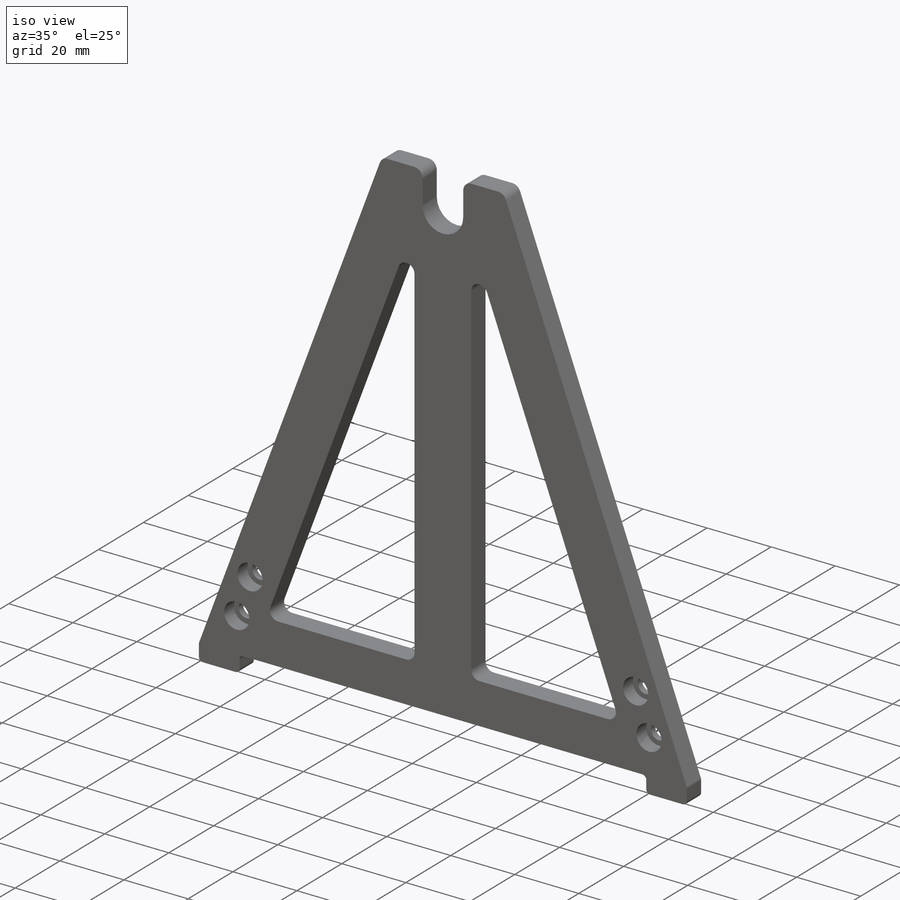
[diagram: iso view]
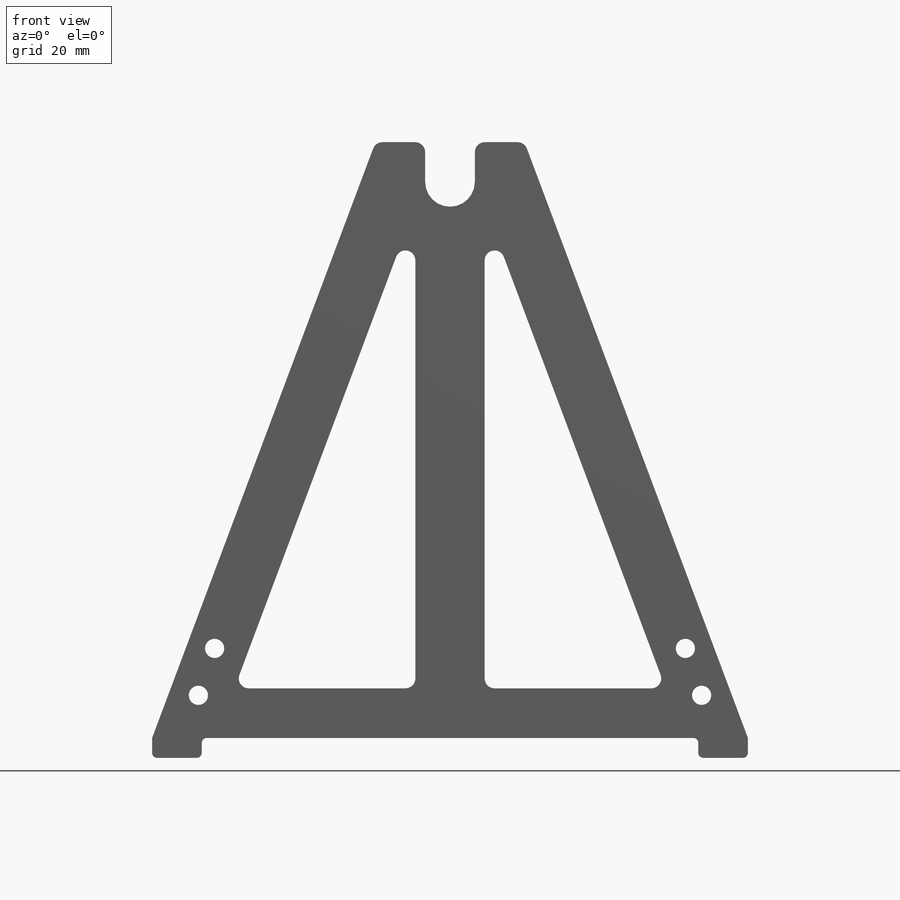
[diagram: front view]
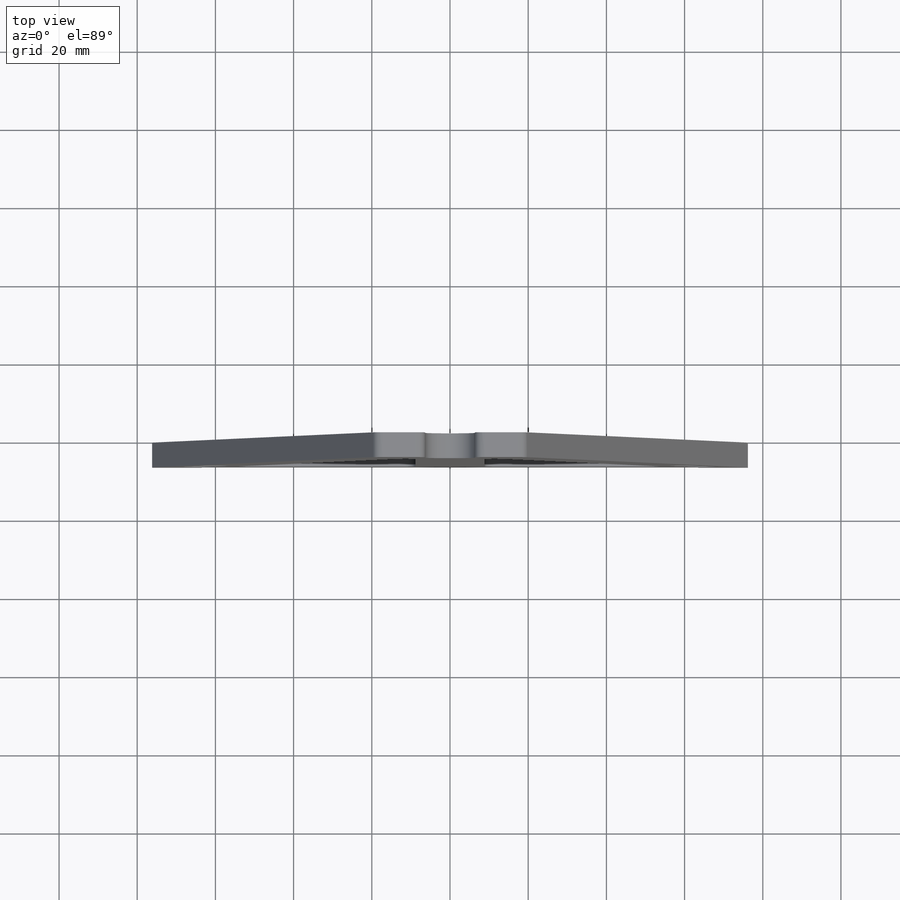
[diagram: top view]
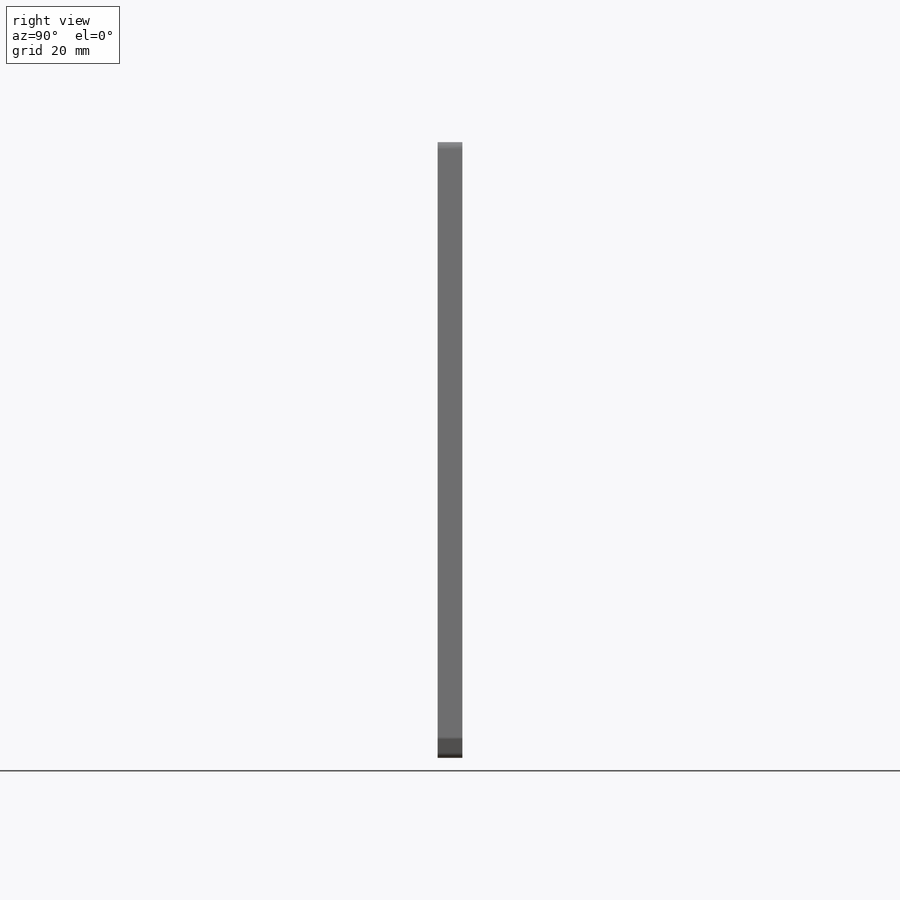
[diagram: right view]
SOLIDWORKS PART (.sldprt)
format: sldprt  version: not decoded by parser v0  size: 571,904 bytes
history: native  units: mm
features: sketch x5, cut_extrude x2, material x1, extrude x1, fillet x1, hole x1 + 1 further entry (+14 scaffold rows collapsed)
feature tree (26):
  scaffold x14  (default folders/planes/origin — collapsed)
  material  "Material <not specified>"
  "Design Table"
  sketch  "Sketch1"  dims[c1.D5=1.27mm c1.D7=2.54mm c1.D1=152.4mm c1.D2=139.7mm c1.D3=12.7mm c1.D4=5.08mm c2.D2=165.1mm c2.D6=38.1mm]
  extrude  "Boss-Extrude1"  Depth=6.35mm
  sketch  "Sketch2"  dims[D4=2.54mm D1=~17.718292mm D2=15.24mm D3=12.7mm]
  cut_extrude  "Cut-Extrude1"  [1 undecoded]
  sketch  "Sketch3"  dims[D1=12.7mm D2=10.16mm]
  cut_extrude  "Cut-Extrude2"  [1 undecoded]
  fillet  "Fillet1"  Radius=2.54mm
  hole  "CBORE for #8 Socket Head Cap Screw1"  Diameter=4.9149mm Depth=6.35mm
  sketch  "Sketch5"
  sketch  "Sketch4"  dims[hole-wizard template sketch: 42 standard entries collapsed; hole parameters kept: c12.Thru Hole Depth=6.35mm c12.C'Bore Dia.=7.9375mm c12.C'Bore Depth=4.4196mm]
decode coverage: 7 of 10 modeling features carry decoded parameters; 1 rows unclassified (native names shown)
note: ~ marks probable driven/reference dimensions
note: 2 parameter values undecoded
note: suppression state not decoded; provenance and decode notes live in map.json
